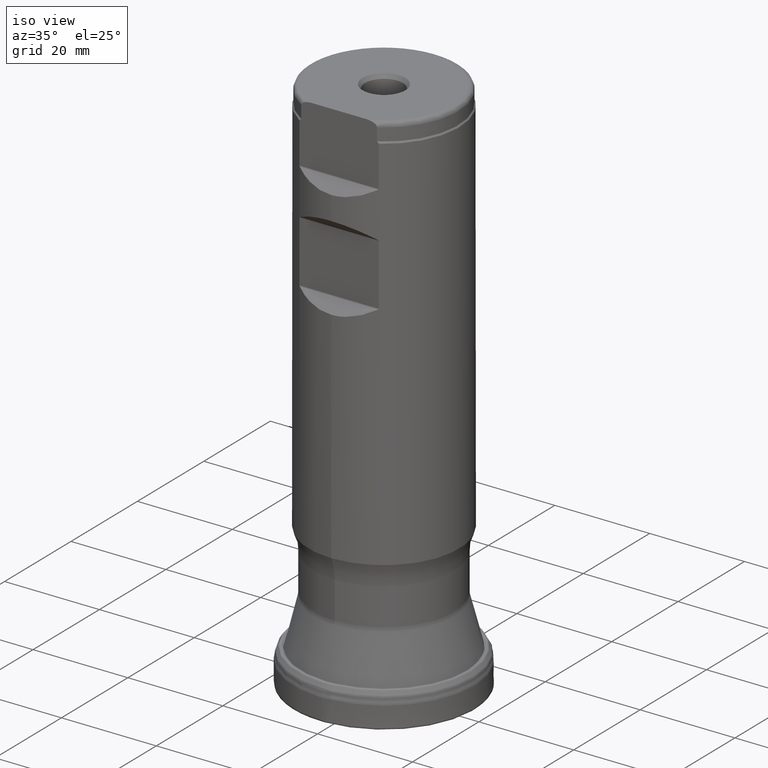
[diagram: clean part render]
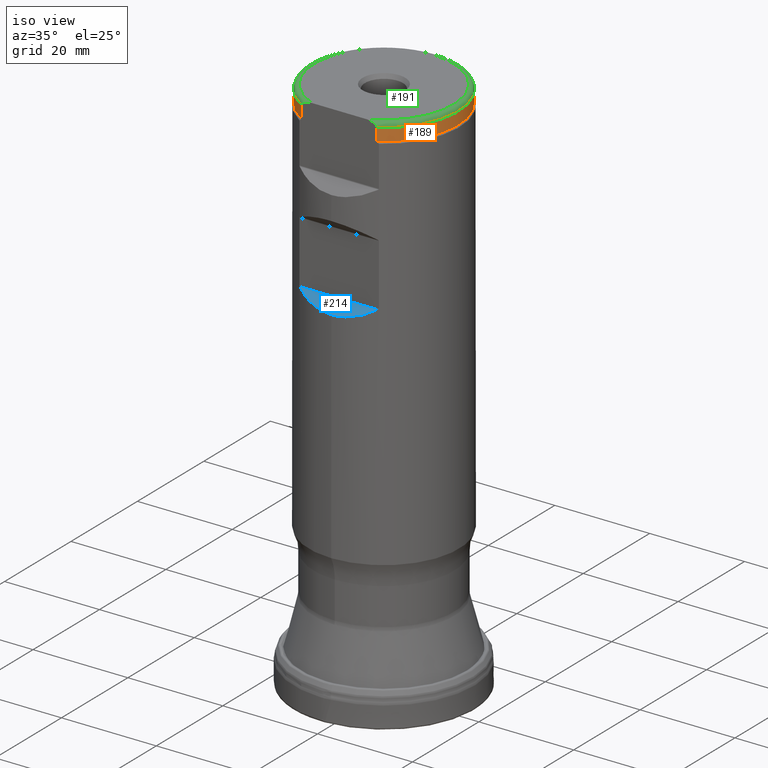
[diagram: same view with three faces highlighted in distinct colors, each labeled with its STEP entity id]
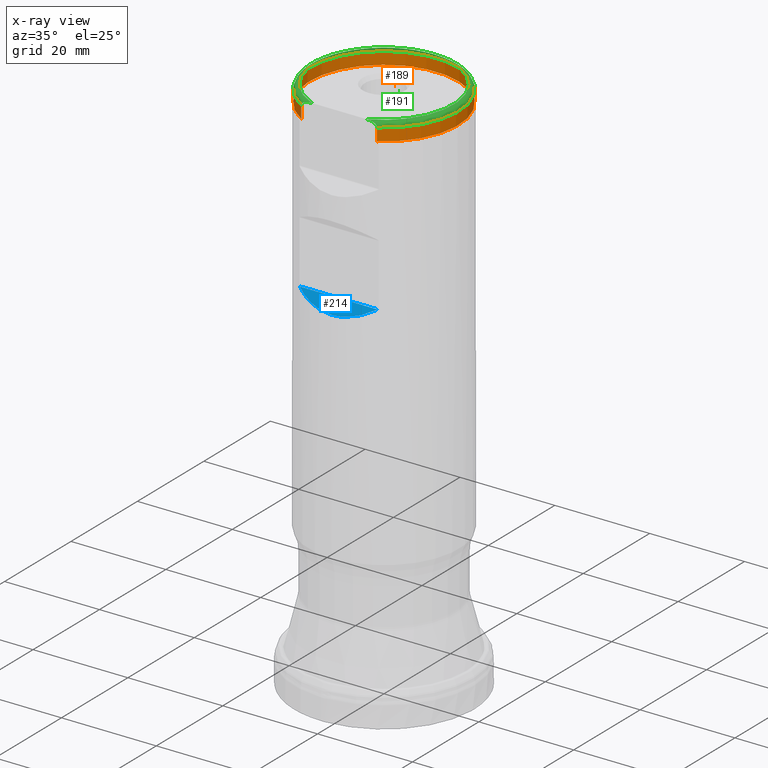
[diagram: x-ray of the same camera — body ghosted, the three highlighted faces saturated]
A machine part, iso view with three faces highlighted in distinct colors.
The next image is the same camera in x-ray (body ghosted, the three faces saturated) — at least one of them is partly hidden behind the body in this view.
Their STEP definitions:

[orange] entity #189 — the highlighted cylindrical surface (partial cylindrical patch) has radius 15.675 mm, axis along (0, 0, 1).
#175=FACE_OUTER_BOUND('',#372,.T.);
#189=ADVANCED_FACE('',(#175),#240,.T.);
#240=CYLINDRICAL_SURFACE('',#817,15.675);
#249=CIRCLE('',#814,15.675);
#250=CIRCLE('',#816,15.675);
#372=EDGE_LOOP('',(#518,#519,#520,#521));
#462=LINE('',#1395,#481);
#463=LINE('',#1396,#482);
#481=VECTOR('',#909,1.);
#482=VECTOR('',#910,1.);
#518=ORIENTED_EDGE('',*,*,#713,.T.);
#519=ORIENTED_EDGE('',*,*,#714,.T.);
#520=ORIENTED_EDGE('',*,*,#711,.T.);
#521=ORIENTED_EDGE('',*,*,#715,.T.);
#650=VERTEX_POINT('',#1384);
#651=VERTEX_POINT('',#1386);
#652=VERTEX_POINT('',#1393);
#653=VERTEX_POINT('',#1394);
#711=EDGE_CURVE('',#651,#650,#249,.T.);
#713=EDGE_CURVE('',#652,#653,#250,.T.);
#714=EDGE_CURVE('',#653,#651,#462,.T.);
#715=EDGE_CURVE('',#650,#652,#463,.T.);
#814=AXIS2_PLACEMENT_3D('',#1385,#903,#904);
#816=AXIS2_PLACEMENT_3D('',#1392,#907,#908);
#817=AXIS2_PLACEMENT_3D('',#1397,#911,#912);
#903=DIRECTION('',(0.,1.17145536458252E-15,1.));
#904=DIRECTION('',(0.,-1.,8.85345314693107E-16));
#907=DIRECTION('',(0.,-1.17145536458252E-15,-1.));
#908=DIRECTION('',(0.,-1.,8.85345314693107E-16));
#909=DIRECTION('',(0.,-1.17145536458252E-15,-1.));
#910=DIRECTION('',(0.,1.17145536458252E-15,1.));
#911=DIRECTION('',(0.,1.17145536458252E-15,1.));
#912=DIRECTION('',(0.,-1.,1.17145536458252E-15));
#1384=CARTESIAN_POINT('',(-7.98721893026603,-13.4873999999999,110.646410161514));
#1385=CARTESIAN_POINT('',(0.,1.29617330755504E-13,110.646410161514));
#1386=CARTESIAN_POINT('',(7.98721893026603,-13.4873999999999,110.646410161514));
#1392=CARTESIAN_POINT('',(0.,1.327258928072E-13,113.3));
#1393=CARTESIAN_POINT('',(-7.9872189302887,-13.4873999999999,113.299999999989));
#1394=CARTESIAN_POINT('',(7.98721893026603,-13.4873999999999,113.3));
#1395=CARTESIAN_POINT('',(7.98721893026603,-13.4874,1.57998870842703E-14));
#1396=CARTESIAN_POINT('',(-7.98721893026603,-13.4874,1.57998870842703E-14));
#1397=CARTESIAN_POINT('',(0.,0.,0.));

[blue] entity #214 — the highlighted planar face has unit normal (0, -0.7071, 0.7071).
#164=PLANE('',#859);
#182=FACE_OUTER_BOUND('',#413,.T.);
#214=ADVANCED_FACE('',(#182),#164,.T.);
#413=EDGE_LOOP('',(#583,#584));
#470=LINE('',#1481,#489);
#489=VECTOR('',#1001,1.);
#497=ELLIPSE('',#809,22.4506403026729,15.875);
#583=ORIENTED_EDGE('',*,*,#741,.T.);
#584=ORIENTED_EDGE('',*,*,#700,.F.);
#640=VERTEX_POINT('',#1323);
#641=VERTEX_POINT('',#1325);
#700=EDGE_CURVE('',#640,#641,#497,.T.);
#741=EDGE_CURVE('',#640,#641,#470,.T.);
#809=AXIS2_PLACEMENT_3D('',#1324,#890,#891);
#859=AXIS2_PLACEMENT_3D('',#1482,#1002,#1003);
#890=DIRECTION('',(-8.28344032153663E-16,0.707106781186547,-0.707106781186549));
#891=DIRECTION('',(-8.28344032153663E-16,0.707106781186549,0.707106781186547));
#1001=DIRECTION('',(-1.,1.37230767120917E-30,1.17145536458252E-15));
#1002=DIRECTION('',(8.28344032153662E-16,-0.707106781186547,0.707106781186549));
#1003=DIRECTION('',(8.29197821516914E-16,0.707106781186549,0.707106781186547));
#1323=CARTESIAN_POINT('',(8.22968557485392,-13.5752679656439,78.687057034356));
#1324=CARTESIAN_POINT('',(0.,1.08081195570106E-13,92.262325));
#1325=CARTESIAN_POINT('',(-8.22968557485393,-13.5752679656439,78.687057034356));
#1481=CARTESIAN_POINT('',(-17.5,-13.5752679656439,78.687057034356));
#1482=CARTESIAN_POINT('',(-17.5,-13.4873999999999,78.774925));

[green] entity #191 — the highlighted toroidal blend (fillet) surface has major radius 14.675 mm and minor (blend) radius 1 mm.
#150=TOROIDAL_SURFACE('',#821,14.675,1.);
#176=FACE_OUTER_BOUND('',#375,.T.);
#191=ADVANCED_FACE('',(#176),#150,.T.);
#250=CIRCLE('',#816,15.675);
#252=CIRCLE('',#819,14.675);
#375=EDGE_LOOP('',(#525,#526,#527,#528));
#525=ORIENTED_EDGE('',*,*,#713,.F.);
#526=ORIENTED_EDGE('',*,*,#719,.T.);
#527=ORIENTED_EDGE('',*,*,#717,.F.);
#528=ORIENTED_EDGE('',*,*,#720,.T.);
#652=VERTEX_POINT('',#1393);
#653=VERTEX_POINT('',#1394);
#655=VERTEX_POINT('',#1401);
#656=VERTEX_POINT('',#1402);
#713=EDGE_CURVE('',#652,#653,#250,.T.);
#717=EDGE_CURVE('',#655,#656,#252,.T.);
#719=EDGE_CURVE('',#652,#656,#791,.T.);
#720=EDGE_CURVE('',#655,#653,#792,.T.);
#791=B_SPLINE_CURVE_WITH_KNOTS('',3,(#1405,#1406,#1407,#1408,#1409,#1410,
#1411,#1412),.UNSPECIFIED.,.F.,.F.,(4,2,2,4),(0.,0.25,0.500000000000002,
1.),.UNSPECIFIED.);
#792=B_SPLINE_CURVE_WITH_KNOTS('',3,(#1413,#1414,#1415,#1416,#1417,#1418,
#1419,#1420),.UNSPECIFIED.,.F.,.F.,(4,2,2,4),(0.,0.499999999999998,0.749999999999999,
1.),.UNSPECIFIED.);
#816=AXIS2_PLACEMENT_3D('',#1392,#907,#908);
#819=AXIS2_PLACEMENT_3D('',#1400,#915,#916);
#821=AXIS2_PLACEMENT_3D('',#1421,#920,#921);
#907=DIRECTION('',(0.,-1.17145536458252E-15,-1.));
#908=DIRECTION('',(0.,-1.,8.85345314693107E-16));
#915=DIRECTION('',(0.,1.17145536458252E-15,1.));
#916=DIRECTION('',(0.,-1.,9.45675489459248E-16));
#920=DIRECTION('',(0.,1.17145536458252E-15,1.));
#921=DIRECTION('',(0.,-1.,8.85345314693107E-16));
#1392=CARTESIAN_POINT('',(0.,1.327258928072E-13,113.3));
#1393=CARTESIAN_POINT('',(-7.9872189302887,-13.4873999999999,113.299999999989));
#1394=CARTESIAN_POINT('',(7.98721893026603,-13.4873999999999,113.3));
#1400=CARTESIAN_POINT('',(0.,1.33897348171782E-13,114.3));
#1401=CARTESIAN_POINT('',(5.78322282468844,-13.4873999999999,114.3));
#1402=CARTESIAN_POINT('',(-5.78322282468865,-13.4873999999999,114.3));
#1405=CARTESIAN_POINT('',(-7.98721893026688,-13.4873999999999,113.299999999988));
#1406=CARTESIAN_POINT('',(-7.98721893027206,-13.4873999999999,113.520202770021));
#1407=CARTESIAN_POINT('',(-7.83736774434978,-13.4873999999999,113.715154682752));
#1408=CARTESIAN_POINT('',(-7.48623082979294,-13.4873999999999,113.980139720299));
#1409=CARTESIAN_POINT('',(-7.28172032421559,-13.4873999999999,114.067554950671));
#1410=CARTESIAN_POINT('',(-6.65729293981297,-13.4873999999999,114.2609297127));
#1411=CARTESIAN_POINT('',(-6.21637245039726,-13.4873999999999,114.3));
#1412=CARTESIAN_POINT('',(-5.78322282468865,-13.4873999999999,114.3));
#1413=CARTESIAN_POINT('',(5.78322282468844,-13.4873999999999,114.3));
#1414=CARTESIAN_POINT('',(6.21394869343175,-13.4873999999999,114.3));
#1415=CARTESIAN_POINT('',(6.65580566004196,-13.4873999999999,114.261664403719));
#1416=CARTESIAN_POINT('',(7.28486381477455,-13.4873999999999,114.06644362587));
#1417=CARTESIAN_POINT('',(7.48748729423047,-13.4873999999999,113.979507582041));
#1418=CARTESIAN_POINT('',(7.83842269980534,-13.4873999999999,113.714040424023));
#1419=CARTESIAN_POINT('',(7.98721893026603,-13.4873999999999,113.522383261353));
#1420=CARTESIAN_POINT('',(7.98721893026603,-13.4873999999999,113.3));
#1421=CARTESIAN_POINT('',(0.,1.327258928072E-13,113.3));